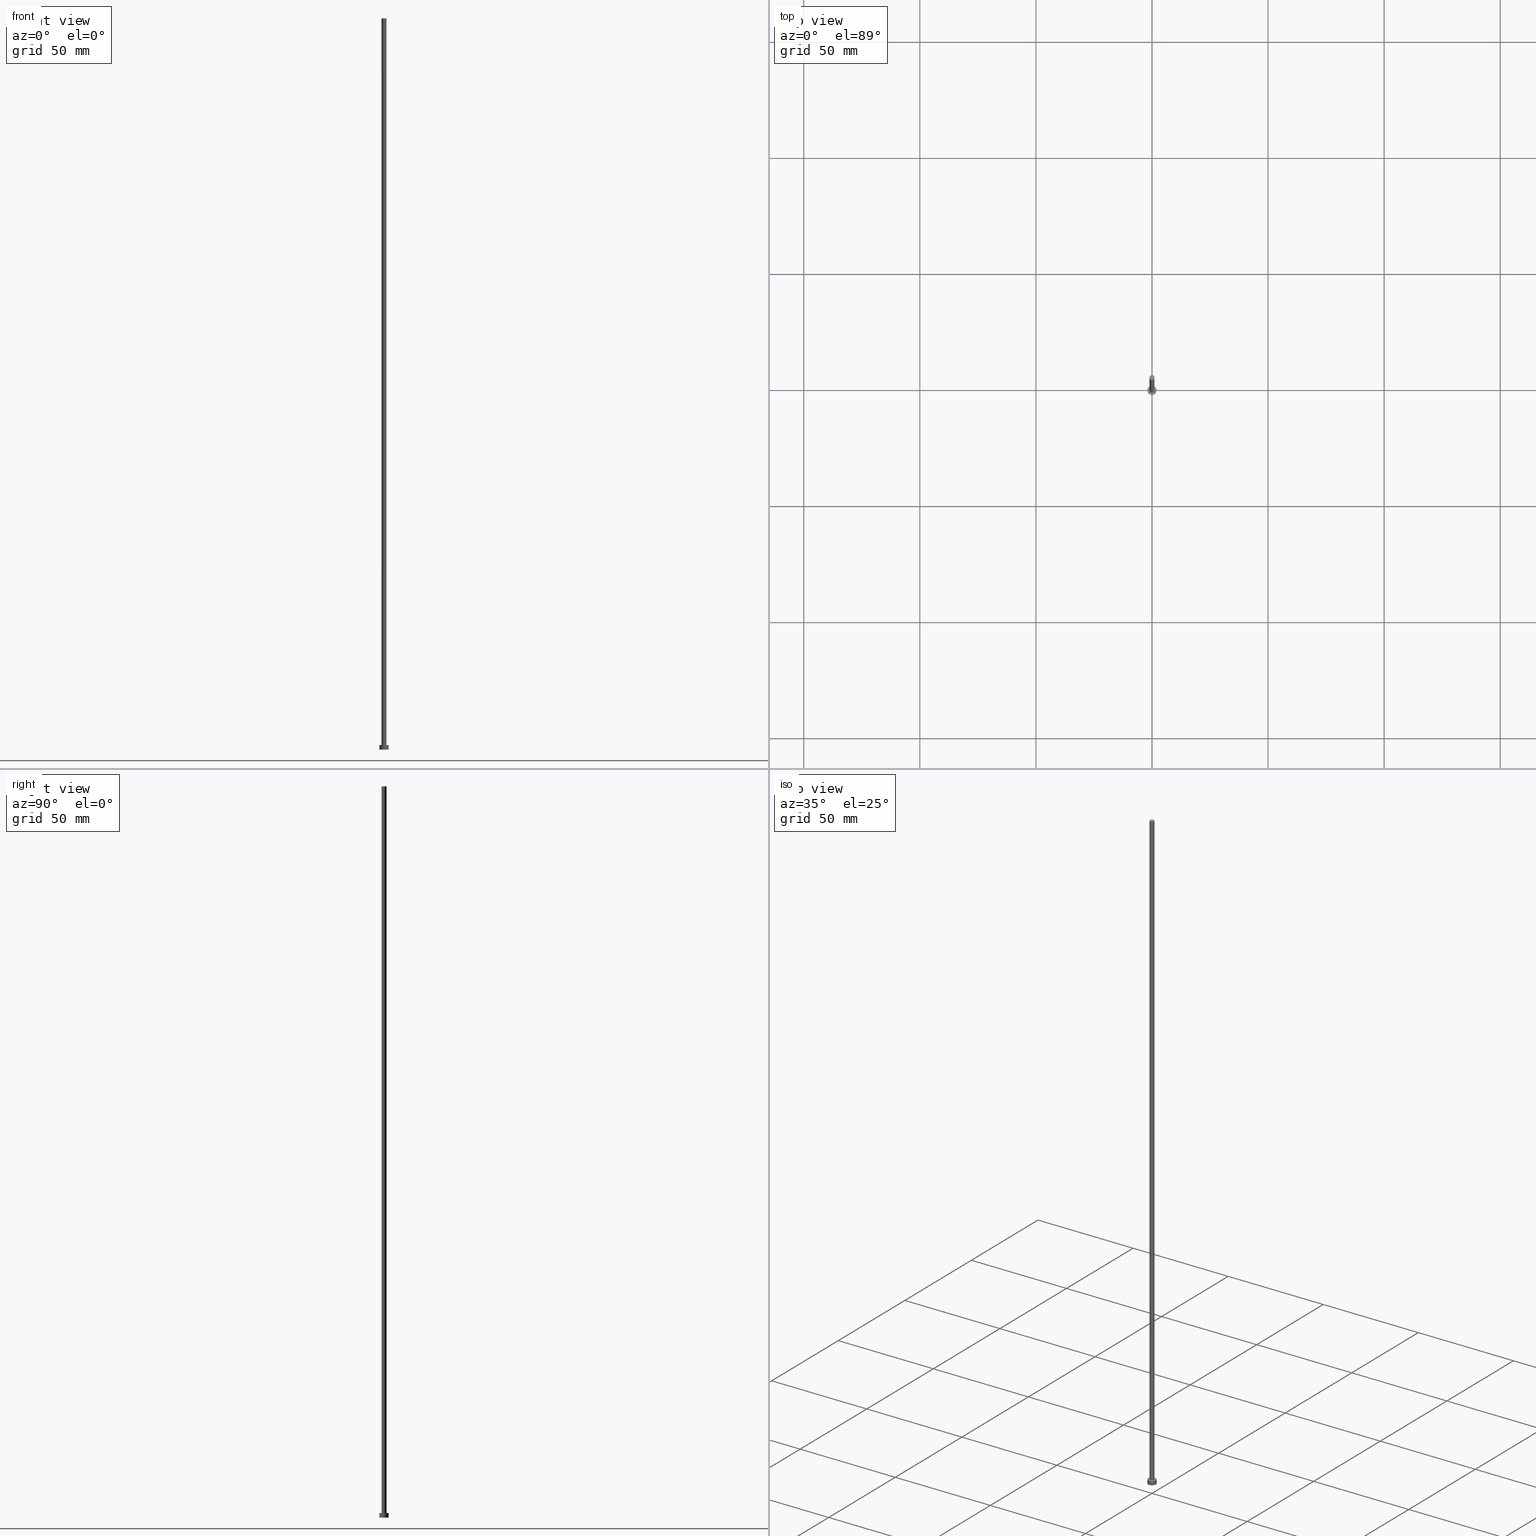
[diagram: canonical four-view strip — front | top / right | iso, engineering-drawing reading convention]
A machine part, canonical four-view strip (front | top / right | iso — engineering-drawing reading convention). The complete STEP part file that produces these views, byte-faithful:
ISO-10303-21;
HEADER;
FILE_DESCRIPTION (( 'STEP AP203' ),
    '1' );
FILE_NAME ('70b1.STEP',
    '2023-02-12T12:50:10',
    ( '' ),
    ( '' ),
    'SwSTEP 2.0',
    'SolidWorks 2019',
    '' );
FILE_SCHEMA (( 'CONFIG_CONTROL_DESIGN' ));
ENDSEC;

DATA;
#1 = FACE_OUTER_BOUND ( 'NONE', #233, .T. ) ;
#2 = DIRECTION ( 'NONE',  ( 1.000000000000000000, 0.000000000000000000, 0.000000000000000000 ) ) ;
#3 = CARTESIAN_POINT ( 'NONE',  ( -1.100000000000000089, 0.000000000000000000, 2.000000000000000000 ) ) ;
#4 = ORGANIZATION ( 'NEUR�EN�', 'NEUR�EN�', '' ) ;
#5 = FACE_BOUND ( 'NONE', #172, .T. ) ;
#6 = DIRECTION ( 'NONE',  ( 1.000000000000000000, 0.000000000000000000, 0.000000000000000000 ) ) ;
#7 = EDGE_CURVE ( 'NONE', #38, #216, #186, .T. ) ;
#8 = PERSON_AND_ORGANIZATION ( #222, #4 ) ;
#9 = PERSON_AND_ORGANIZATION ( #222, #4 ) ;
#10 = AXIS2_PLACEMENT_3D ( 'NONE', #175, #238, #63 ) ;
#11 = CALENDAR_DATE ( 2023, 12, 2 ) ;
#12 = CC_DESIGN_PERSON_AND_ORGANIZATION_ASSIGNMENT ( #8, #245, ( #166 ) ) ;
#13 = CIRCLE ( 'NONE', #237, 1.100000000000000089 ) ;
#14 = AXIS2_PLACEMENT_3D ( 'NONE', #107, #185, #88 ) ;
#15 = APPROVAL_DATE_TIME ( #111, #95 ) ;
#16 = CC_DESIGN_PERSON_AND_ORGANIZATION_ASSIGNMENT ( #145, #32, ( #199 ) ) ;
#17 = AXIS2_PLACEMENT_3D ( 'NONE', #154, #236, #59 ) ;
#18 = ORIENTED_EDGE ( 'NONE', *, *, #31, .F. ) ;
#19 = ORIENTED_EDGE ( 'NONE', *, *, #49, .T. ) ;
#20 = ORIENTED_EDGE ( 'NONE', *, *, #91, .F. ) ;
#21 = CLOSED_SHELL ( 'NONE', ( #83, #34, #184, #86, #29, #254, #146 ) ) ;
#22 = CYLINDRICAL_SURFACE ( 'NONE', #189, 1.100000000000000089 ) ;
#23 = DIRECTION ( 'NONE',  ( -1.000000000000000000, 0.000000000000000000, 0.000000000000000000 ) ) ;
#24 = DIRECTION ( 'NONE',  ( 1.000000000000000000, 0.000000000000000000, -0.000000000000000000 ) ) ;
#25 = AXIS2_PLACEMENT_3D ( 'NONE', #66, #136, #223 ) ;
#26 = DIRECTION ( 'NONE',  ( -0.000000000000000000, -0.000000000000000000, -1.000000000000000000 ) ) ;
#27 = EDGE_CURVE ( 'NONE', #116, #62, #42, .T. ) ;
#28 = CYLINDRICAL_SURFACE ( 'NONE', #14, 2.000000000000000000 ) ;
#29 = ADVANCED_FACE ( 'NONE', ( #118 ), #195, .F. ) ;
#30 = CALENDAR_DATE ( 2023, 12, 2 ) ;
#31 = EDGE_CURVE ( 'NONE', #62, #177, #96, .T. ) ;
#32 = PERSON_AND_ORGANIZATION_ROLE ( 'design_owner' ) ;
#33 = DIRECTION ( 'NONE',  ( 0.000000000000000000, 0.000000000000000000, 1.000000000000000000 ) ) ;
#34 = ADVANCED_FACE ( 'NONE', ( #1 ), #200, .T. ) ;
#35 =( NAMED_UNIT ( * ) SI_UNIT ( $, .STERADIAN. ) SOLID_ANGLE_UNIT ( ) );
#36 = ORIENTED_EDGE ( 'NONE', *, *, #91, .T. ) ;
#37 = EDGE_CURVE ( 'NONE', #38, #253, #105, .T. ) ;
#38 = VERTEX_POINT ( 'NONE', #180 ) ;
#39 = CIRCLE ( 'NONE', #151, 2.000000000000000000 ) ;
#40 = DIRECTION ( 'NONE',  ( -0.000000000000000000, -0.000000000000000000, -1.000000000000000000 ) ) ;
#41 = APPROVAL_PERSON_ORGANIZATION ( #53, #95, #246 ) ;
#42 = LINE ( 'NONE', #196, #109 ) ;
#43 = PRODUCT_DEFINITION_SHAPE ( 'NONE', 'NONE',  #187 ) ;
#44 = FACE_OUTER_BOUND ( 'NONE', #100, .T. ) ;
#45 = AXIS2_PLACEMENT_3D ( 'NONE', #87, #201, #24 ) ;
#46 = DIRECTION ( 'NONE',  ( 1.000000000000000000, 0.000000000000000000, 0.000000000000000000 ) ) ;
#47 = CARTESIAN_POINT ( 'NONE',  ( -2.000000000000000000, 0.000000000000000000, 2.000000000000000000 ) ) ;
#48 = FACE_OUTER_BOUND ( 'NONE', #78, .T. ) ;
#49 = EDGE_CURVE ( 'NONE', #177, #62, #39, .T. ) ;
#50 = FACE_OUTER_BOUND ( 'NONE', #97, .T. ) ;
#51 = APPROVAL_PERSON_ORGANIZATION ( #228, #170, #89 ) ;
#52 = DIRECTION ( 'NONE',  ( -0.000000000000000000, -0.000000000000000000, -1.000000000000000000 ) ) ;
#53 = PERSON_AND_ORGANIZATION ( #222, #4 ) ;
#54 = AXIS2_PLACEMENT_3D ( 'NONE', #82, #159, #155 ) ;
#55 = DATE_AND_TIME ( #230, #191 ) ;
#56 = APPROVAL_PERSON_ORGANIZATION ( #211, #73, #171 ) ;
#57 = CIRCLE ( 'NONE', #197, 2.000000000000000000 ) ;
#58 = ORIENTED_EDGE ( 'NONE', *, *, #244, .T. ) ;
#59 = DIRECTION ( 'NONE',  ( 1.000000000000000000, 0.000000000000000000, 0.000000000000000000 ) ) ;
#60 = ADVANCED_BREP_SHAPE_REPRESENTATION ( '70b1', ( #209, #134 ), #212 ) ;
#61 = LOCAL_TIME ( 13, 50, 10.00000000000000000, #142 ) ;
#62 = VERTEX_POINT ( 'NONE', #240 ) ;
#63 = DIRECTION ( 'NONE',  ( 1.000000000000000000, 0.000000000000000000, -0.000000000000000000 ) ) ;
#64 = FACE_OUTER_BOUND ( 'NONE', #235, .T. ) ;
#65 = CYLINDRICAL_SURFACE ( 'NONE', #128, 1.100000000000000089 ) ;
#66 = CARTESIAN_POINT ( 'NONE',  ( 0.000000000000000000, 0.000000000000000000, 315.0000000000000000 ) ) ;
#67 = CARTESIAN_POINT ( 'NONE',  ( -1.100000000000000089, 0.000000000000000000, 315.0000000000000000 ) ) ;
#68 = CC_DESIGN_PERSON_AND_ORGANIZATION_ASSIGNMENT ( #9, #90, ( #178 ) ) ;
#69 = DIRECTION ( 'NONE',  ( 1.000000000000000000, 0.000000000000000000, 0.000000000000000000 ) ) ;
#70 = EDGE_CURVE ( 'NONE', #81, #116, #57, .T. ) ;
#71 = PERSON_AND_ORGANIZATION ( #222, #4 ) ;
#72 = APPROVAL_STATUS ( 'not_yet_approved' ) ;
#73 = APPROVAL ( #72, 'NEUR�EN�' ) ;
#74 = CIRCLE ( 'NONE', #54, 1.100000000000000089 ) ;
#75 = ORIENTED_EDGE ( 'NONE', *, *, #27, .T. ) ;
#76 = UNCERTAINTY_MEASURE_WITH_UNIT (LENGTH_MEASURE( 1.000000000000000082E-05 ), #165, 'distance_accuracy_value', 'NONE');
#77 = ORIENTED_EDGE ( 'NONE', *, *, #158, .T. ) ;
#78 = EDGE_LOOP ( 'NONE', ( #132, #80, #58, #173 ) ) ;
#79 = AXIS2_PLACEMENT_3D ( 'NONE', #183, #26, #23 ) ;
#80 = ORIENTED_EDGE ( 'NONE', *, *, #37, .T. ) ;
#81 = VERTEX_POINT ( 'NONE', #47 ) ;
#82 = CARTESIAN_POINT ( 'NONE',  ( 0.000000000000000000, 0.000000000000000000, 2.000000000000000000 ) ) ;
#83 = ADVANCED_FACE ( 'NONE', ( #48 ), #65, .T. ) ;
#84 = CARTESIAN_POINT ( 'NONE',  ( 0.000000000000000000, 0.000000000000000000, 2.000000000000000000 ) ) ;
#85 = CARTESIAN_POINT ( 'NONE',  ( 0.000000000000000000, 0.000000000000000000, 0.000000000000000000 ) ) ;
#86 = ADVANCED_FACE ( 'NONE', ( #5, #123 ), #157, .T. ) ;
#87 = CARTESIAN_POINT ( 'NONE',  ( 0.000000000000000000, 0.000000000000000000, 2.000000000000000000 ) ) ;
#88 = DIRECTION ( 'NONE',  ( -1.000000000000000000, 0.000000000000000000, 0.000000000000000000 ) ) ;
#89 = APPROVAL_ROLE ( '' ) ;
#90 = PERSON_AND_ORGANIZATION_ROLE ( 'classification_officer' ) ;
#91 = EDGE_CURVE ( 'NONE', #133, #253, #74, .T. ) ;
#92 = DIRECTION ( 'NONE',  ( -1.000000000000000000, 0.000000000000000000, 0.000000000000000000 ) ) ;
#93 = LOCAL_TIME ( 13, 50, 10.00000000000000000, #130 ) ;
#94 = COORDINATED_UNIVERSAL_TIME_OFFSET ( 1, 0, .AHEAD. ) ;
#95 = APPROVAL ( #231, 'NEUR�EN�' ) ;
#96 = CIRCLE ( 'NONE', #217, 2.000000000000000000 ) ;
#97 = EDGE_LOOP ( 'NONE', ( #131, #112, #77, #19 ) ) ;
#98 = CC_DESIGN_SECURITY_CLASSIFICATION ( #178, ( #166 ) ) ;
#99 = ORIENTED_EDGE ( 'NONE', *, *, #174, .T. ) ;
#100 = EDGE_LOOP ( 'NONE', ( #255, #249, #99, #36 ) ) ;
#101 = ORIENTED_EDGE ( 'NONE', *, *, #122, .T. ) ;
#102 = DIRECTION ( 'NONE',  ( -0.000000000000000000, -0.000000000000000000, -1.000000000000000000 ) ) ;
#103 = DIRECTION ( 'NONE',  ( -0.000000000000000000, -0.000000000000000000, -1.000000000000000000 ) ) ;
#104 = CARTESIAN_POINT ( 'NONE',  ( 0.000000000000000000, 0.000000000000000000, 315.0000000000000000 ) ) ;
#105 = LINE ( 'NONE', #242, #161 ) ;
#106 = CC_DESIGN_APPROVAL ( #95, ( #187 ) ) ;
#107 = CARTESIAN_POINT ( 'NONE',  ( 0.000000000000000000, 0.000000000000000000, 2.000000000000000000 ) ) ;
#108 = DATE_AND_TIME ( #30, #61 ) ;
#109 = VECTOR ( 'NONE', #40, 1000.000000000000000 ) ;
#110 = MECHANICAL_CONTEXT ( 'NONE', #147, 'mechanical' ) ;
#111 = DATE_AND_TIME ( #11, #234 ) ;
#112 = ORIENTED_EDGE ( 'NONE', *, *, #70, .F. ) ;
#113 = ORIENTED_EDGE ( 'NONE', *, *, #49, .F. ) ;
#114 = CIRCLE ( 'NONE', #215, 2.000000000000000000 ) ;
#115 = ORIENTED_EDGE ( 'NONE', *, *, #31, .T. ) ;
#116 = VERTEX_POINT ( 'NONE', #241 ) ;
#117 = CALENDAR_DATE ( 2023, 12, 2 ) ;
#118 = FACE_OUTER_BOUND ( 'NONE', #150, .T. ) ;
#119 = CARTESIAN_POINT ( 'NONE',  ( 0.000000000000000000, 0.000000000000000000, 2.000000000000000000 ) ) ;
#120 = EDGE_CURVE ( 'NONE', #116, #81, #114, .T. ) ;
#121 = DIRECTION ( 'NONE',  ( 1.000000000000000000, 0.000000000000000000, 0.000000000000000000 ) ) ;
#122 = EDGE_CURVE ( 'NONE', #216, #38, #153, .T. ) ;
#123 = FACE_OUTER_BOUND ( 'NONE', #149, .T. ) ;
#124 = DIRECTION ( 'NONE',  ( 0.000000000000000000, 0.000000000000000000, 1.000000000000000000 ) ) ;
#125 = PLANE ( 'NONE',  #25 ) ;
#126 = APPLICATION_PROTOCOL_DEFINITION ( 'international standard', 'config_control_design', 1994, #147 ) ;
#127 = COORDINATED_UNIVERSAL_TIME_OFFSET ( 1, 0, .AHEAD. ) ;
#128 = AXIS2_PLACEMENT_3D ( 'NONE', #137, #102, #224 ) ;
#129 = DATE_TIME_ROLE ( 'classification_date' ) ;
#130 = COORDINATED_UNIVERSAL_TIME_OFFSET ( 1, 0, .AHEAD. ) ;
#131 = ORIENTED_EDGE ( 'NONE', *, *, #27, .F. ) ;
#132 = ORIENTED_EDGE ( 'NONE', *, *, #7, .F. ) ;
#133 = VERTEX_POINT ( 'NONE', #3 ) ;
#134 = AXIS2_PLACEMENT_3D ( 'NONE', #232, #33, #248 ) ;
#135 = ORIENTED_EDGE ( 'NONE', *, *, #120, .T. ) ;
#136 = DIRECTION ( 'NONE',  ( 0.000000000000000000, 0.000000000000000000, 1.000000000000000000 ) ) ;
#137 = CARTESIAN_POINT ( 'NONE',  ( 0.000000000000000000, 0.000000000000000000, 315.0000000000000000 ) ) ;
#138 = LINE ( 'NONE', #205, #164 ) ;
#139 = DIRECTION ( 'NONE',  ( -0.000000000000000000, -0.000000000000000000, -1.000000000000000000 ) ) ;
#140 = DATE_TIME_ROLE ( 'creation_date' ) ;
#141 = PERSON_AND_ORGANIZATION_ROLE ( 'creator' ) ;
#142 = COORDINATED_UNIVERSAL_TIME_OFFSET ( 1, 0, .AHEAD. ) ;
#143 = DESIGN_CONTEXT ( 'detailed design', #182, 'design' ) ;
#144 = COORDINATED_UNIVERSAL_TIME_OFFSET ( 1, 0, .AHEAD. ) ;
#145 = PERSON_AND_ORGANIZATION ( #222, #4 ) ;
#146 = ADVANCED_FACE ( 'NONE', ( #64 ), #125, .T. ) ;
#147 = APPLICATION_CONTEXT ( 'configuration controlled 3d designs of mechanical parts and assemblies' ) ;
#148 = APPROVAL_DATE_TIME ( #192, #73 ) ;
#149 = EDGE_LOOP ( 'NONE', ( #169, #135 ) ) ;
#150 = EDGE_LOOP ( 'NONE', ( #113, #18 ) ) ;
#151 = AXIS2_PLACEMENT_3D ( 'NONE', #85, #124, #2 ) ;
#152 = CARTESIAN_POINT ( 'NONE',  ( 0.000000000000000000, 0.000000000000000000, 0.000000000000000000 ) ) ;
#153 = CIRCLE ( 'NONE', #247, 1.100000000000000089 ) ;
#154 = CARTESIAN_POINT ( 'NONE',  ( 0.000000000000000000, 0.000000000000000000, 315.0000000000000000 ) ) ;
#155 = DIRECTION ( 'NONE',  ( 1.000000000000000000, 0.000000000000000000, 0.000000000000000000 ) ) ;
#156 = DIRECTION ( 'NONE',  ( 0.000000000000000000, 0.000000000000000000, 1.000000000000000000 ) ) ;
#157 = PLANE ( 'NONE',  #45 ) ;
#158 = EDGE_CURVE ( 'NONE', #81, #177, #138, .T. ) ;
#159 = DIRECTION ( 'NONE',  ( 0.000000000000000000, 0.000000000000000000, 1.000000000000000000 ) ) ;
#160 = CARTESIAN_POINT ( 'NONE',  ( -1.100000000000000089, 0.000000000000000000, 315.0000000000000000 ) ) ;
#161 = VECTOR ( 'NONE', #103, 1000.000000000000000 ) ;
#162 = CARTESIAN_POINT ( 'NONE',  ( 0.000000000000000000, 0.000000000000000000, 315.0000000000000000 ) ) ;
#163 = CALENDAR_DATE ( 2023, 12, 2 ) ;
#164 = VECTOR ( 'NONE', #225, 1000.000000000000000 ) ;
#165 =( LENGTH_UNIT ( ) NAMED_UNIT ( * ) SI_UNIT ( .MILLI., .METRE. ) );
#166 = PRODUCT_DEFINITION_FORMATION_WITH_SPECIFIED_SOURCE ( 'LIBOVOLN�', '', #199, .NOT_KNOWN. ) ;
#167 = DATE_AND_TIME ( #163, #251 ) ;
#168 = SHAPE_DEFINITION_REPRESENTATION ( #43, #60 ) ;
#169 = ORIENTED_EDGE ( 'NONE', *, *, #70, .T. ) ;
#170 = APPROVAL ( #207, 'NEUR�EN�' ) ;
#171 = APPROVAL_ROLE ( '' ) ;
#172 = EDGE_LOOP ( 'NONE', ( #20, #252 ) ) ;
#173 = ORIENTED_EDGE ( 'NONE', *, *, #174, .F. ) ;
#174 = EDGE_CURVE ( 'NONE', #216, #133, #202, .T. ) ;
#175 = CARTESIAN_POINT ( 'NONE',  ( 0.000000000000000000, 0.000000000000000000, 0.000000000000000000 ) ) ;
#176 = PRODUCT_RELATED_PRODUCT_CATEGORY ( 'detail', '', ( #199 ) ) ;
#177 = VERTEX_POINT ( 'NONE', #227 ) ;
#178 = SECURITY_CLASSIFICATION ( '', '', #188 ) ;
#179 = DIRECTION ( 'NONE',  ( 0.000000000000000000, 0.000000000000000000, 1.000000000000000000 ) ) ;
#180 = CARTESIAN_POINT ( 'NONE',  ( 1.100000000000000089, 1.347111479062088503E-16, 315.0000000000000000 ) ) ;
#181 = DIRECTION ( 'NONE',  ( 0.000000000000000000, 0.000000000000000000, 1.000000000000000000 ) ) ;
#182 = APPLICATION_CONTEXT ( 'configuration controlled 3d designs of mechanical parts and assemblies' ) ;
#183 = CARTESIAN_POINT ( 'NONE',  ( 0.000000000000000000, 0.000000000000000000, 2.000000000000000000 ) ) ;
#184 = ADVANCED_FACE ( 'NONE', ( #50 ), #28, .T. ) ;
#185 = DIRECTION ( 'NONE',  ( -0.000000000000000000, -0.000000000000000000, -1.000000000000000000 ) ) ;
#186 = CIRCLE ( 'NONE', #17, 1.100000000000000089 ) ;
#187 = PRODUCT_DEFINITION ( 'NEZN�M�', '', #166, #143 ) ;
#188 = SECURITY_CLASSIFICATION_LEVEL ( 'unclassified' ) ;
#189 = AXIS2_PLACEMENT_3D ( 'NONE', #162, #52, #92 ) ;
#190 = APPROVAL_DATE_TIME ( #108, #170 ) ;
#191 = LOCAL_TIME ( 13, 50, 10.00000000000000000, #144 ) ;
#192 = DATE_AND_TIME ( #117, #93 ) ;
#193 = DIRECTION ( 'NONE',  ( 0.000000000000000000, 0.000000000000000000, 1.000000000000000000 ) ) ;
#194 = ORIENTED_EDGE ( 'NONE', *, *, #158, .F. ) ;
#195 = PLANE ( 'NONE',  #10 ) ;
#196 = CARTESIAN_POINT ( 'NONE',  ( 2.000000000000000000, 2.449293598294706414E-16, 2.000000000000000000 ) ) ;
#197 = AXIS2_PLACEMENT_3D ( 'NONE', #84, #156, #46 ) ;
#198 = CARTESIAN_POINT ( 'NONE',  ( 0.000000000000000000, 0.000000000000000000, 2.000000000000000000 ) ) ;
#199 = PRODUCT ( '70b1', '70b1', '', ( #110 ) ) ;
#200 = CYLINDRICAL_SURFACE ( 'NONE', #79, 2.000000000000000000 ) ;
#201 = DIRECTION ( 'NONE',  ( 0.000000000000000000, 0.000000000000000000, 1.000000000000000000 ) ) ;
#202 = LINE ( 'NONE', #67, #203 ) ;
#203 = VECTOR ( 'NONE', #139, 1000.000000000000000 ) ;
#204 = CC_DESIGN_APPROVAL ( #170, ( #166 ) ) ;
#205 = CARTESIAN_POINT ( 'NONE',  ( -2.000000000000000000, 0.000000000000000000, 2.000000000000000000 ) ) ;
#206 = CC_DESIGN_PERSON_AND_ORGANIZATION_ASSIGNMENT ( #71, #141, ( #187 ) ) ;
#207 = APPROVAL_STATUS ( 'not_yet_approved' ) ;
#208 = PERSON_AND_ORGANIZATION_ROLE ( 'design_supplier' ) ;
#209 = MANIFOLD_SOLID_BREP ( 'P�idat vysunut�m3', #21 ) ;
#210 = CC_DESIGN_DATE_AND_TIME_ASSIGNMENT ( #167, #140, ( #187 ) ) ;
#211 = PERSON_AND_ORGANIZATION ( #222, #4 ) ;
#212 =( GEOMETRIC_REPRESENTATION_CONTEXT ( 3 ) GLOBAL_UNCERTAINTY_ASSIGNED_CONTEXT ( ( #76 ) ) GLOBAL_UNIT_ASSIGNED_CONTEXT ( ( #165, #213, #35 ) ) REPRESENTATION_CONTEXT ( 'NONE', 'WORKASPACE' ) );
#213 =( NAMED_UNIT ( * ) PLANE_ANGLE_UNIT ( ) SI_UNIT ( $, .RADIAN. ) );
#214 = APPLICATION_PROTOCOL_DEFINITION ( 'international standard', 'config_control_design', 1994, #182 ) ;
#215 = AXIS2_PLACEMENT_3D ( 'NONE', #119, #179, #239 ) ;
#216 = VERTEX_POINT ( 'NONE', #160 ) ;
#217 = AXIS2_PLACEMENT_3D ( 'NONE', #152, #193, #121 ) ;
#218 = CC_DESIGN_PERSON_AND_ORGANIZATION_ASSIGNMENT ( #229, #208, ( #166 ) ) ;
#219 = CC_DESIGN_APPROVAL ( #73, ( #178 ) ) ;
#220 = ORIENTED_EDGE ( 'NONE', *, *, #7, .T. ) ;
#221 = CARTESIAN_POINT ( 'NONE',  ( 1.100000000000000089, 1.347111479062088503E-16, 2.000000000000000000 ) ) ;
#222 = PERSON ( 'NEUR�EN�', 'NEUR�EN�', 'NEUR�EN�', ('NEUR�EN�'), ('NEUR�EN�'), ('NEUR�EN�') ) ;
#223 = DIRECTION ( 'NONE',  ( 1.000000000000000000, 0.000000000000000000, -0.000000000000000000 ) ) ;
#224 = DIRECTION ( 'NONE',  ( -1.000000000000000000, 0.000000000000000000, 0.000000000000000000 ) ) ;
#225 = DIRECTION ( 'NONE',  ( -0.000000000000000000, -0.000000000000000000, -1.000000000000000000 ) ) ;
#226 = CC_DESIGN_DATE_AND_TIME_ASSIGNMENT ( #55, #129, ( #178 ) ) ;
#227 = CARTESIAN_POINT ( 'NONE',  ( -2.000000000000000000, 0.000000000000000000, 0.000000000000000000 ) ) ;
#228 = PERSON_AND_ORGANIZATION ( #222, #4 ) ;
#229 = PERSON_AND_ORGANIZATION ( #222, #4 ) ;
#230 = CALENDAR_DATE ( 2023, 12, 2 ) ;
#231 = APPROVAL_STATUS ( 'not_yet_approved' ) ;
#232 = CARTESIAN_POINT ( 'NONE',  ( 0.000000000000000000, 0.000000000000000000, 0.000000000000000000 ) ) ;
#233 = EDGE_LOOP ( 'NONE', ( #250, #75, #115, #194 ) ) ;
#234 = LOCAL_TIME ( 13, 50, 10.00000000000000000, #127 ) ;
#235 = EDGE_LOOP ( 'NONE', ( #101, #220 ) ) ;
#236 = DIRECTION ( 'NONE',  ( 0.000000000000000000, 0.000000000000000000, 1.000000000000000000 ) ) ;
#237 = AXIS2_PLACEMENT_3D ( 'NONE', #198, #243, #69 ) ;
#238 = DIRECTION ( 'NONE',  ( 0.000000000000000000, 0.000000000000000000, 1.000000000000000000 ) ) ;
#239 = DIRECTION ( 'NONE',  ( 1.000000000000000000, 0.000000000000000000, 0.000000000000000000 ) ) ;
#240 = CARTESIAN_POINT ( 'NONE',  ( 2.000000000000000000, 2.449293598294706414E-16, 0.000000000000000000 ) ) ;
#241 = CARTESIAN_POINT ( 'NONE',  ( 2.000000000000000000, 2.449293598294706414E-16, 2.000000000000000000 ) ) ;
#242 = CARTESIAN_POINT ( 'NONE',  ( 1.100000000000000089, 1.347111479062088503E-16, 315.0000000000000000 ) ) ;
#243 = DIRECTION ( 'NONE',  ( 0.000000000000000000, 0.000000000000000000, 1.000000000000000000 ) ) ;
#244 = EDGE_CURVE ( 'NONE', #253, #133, #13, .T. ) ;
#245 = PERSON_AND_ORGANIZATION_ROLE ( 'creator' ) ;
#246 = APPROVAL_ROLE ( '' ) ;
#247 = AXIS2_PLACEMENT_3D ( 'NONE', #104, #181, #6 ) ;
#248 = DIRECTION ( 'NONE',  ( 1.000000000000000000, 0.000000000000000000, 0.000000000000000000 ) ) ;
#249 = ORIENTED_EDGE ( 'NONE', *, *, #122, .F. ) ;
#250 = ORIENTED_EDGE ( 'NONE', *, *, #120, .F. ) ;
#251 = LOCAL_TIME ( 13, 50, 10.00000000000000000, #94 ) ;
#252 = ORIENTED_EDGE ( 'NONE', *, *, #244, .F. ) ;
#253 = VERTEX_POINT ( 'NONE', #221 ) ;
#254 = ADVANCED_FACE ( 'NONE', ( #44 ), #22, .T. ) ;
#255 = ORIENTED_EDGE ( 'NONE', *, *, #37, .F. ) ;
ENDSEC;
END-ISO-10303-21;
